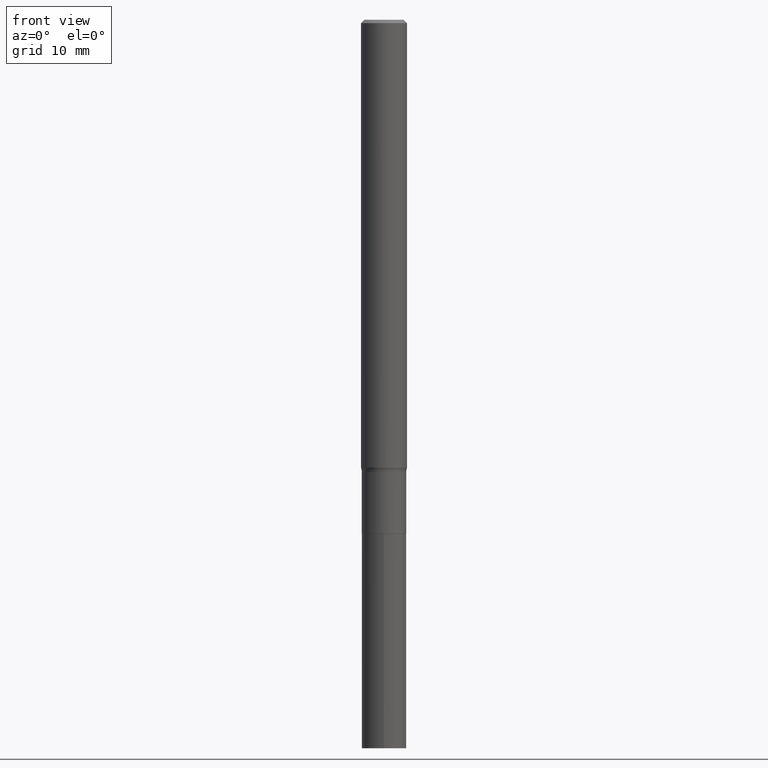
[diagram: clean part render]
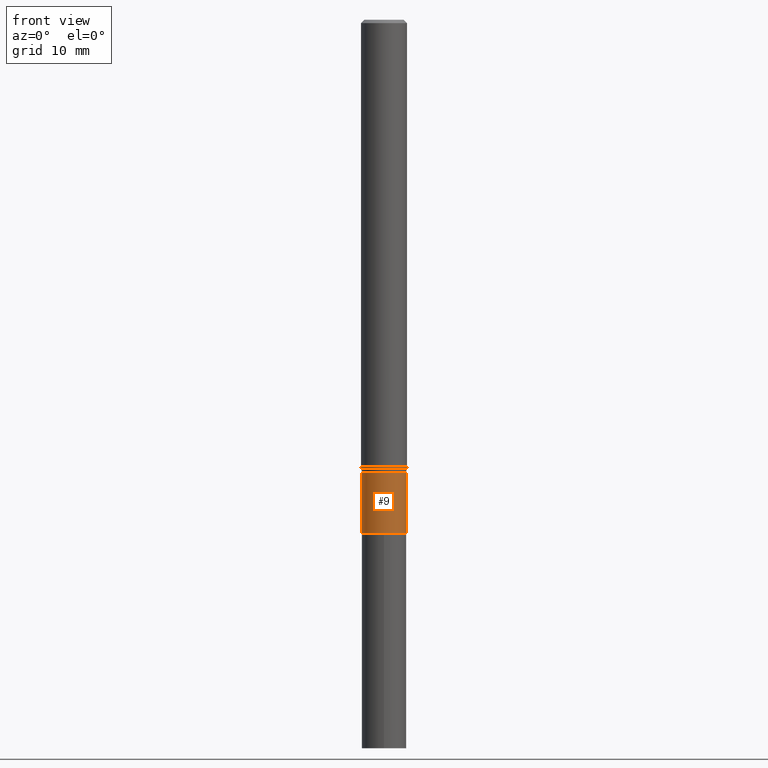
[diagram: same view with one face highlighted and labeled with its STEP entity id]
A machine part, front view. The second image highlights one B-rep face of the part: STEP entity #9.
In plain terms, the highlighted cylindrical surface (edge-blend (fillet) strip) has radius 2.8994 mm, axis along (-0, 0, 1).
Its self-contained STEP definition (entity closure, byte-faithful):
#1 = EDGE_CURVE ( 'NONE', #262, #442, #53, .T. ) ;
#9 = ADVANCED_FACE ( 'NONE', ( #234 ), #460, .T. ) ;
#14 = DIRECTION ( 'NONE',  ( -2.445468806185136597E-29, 3.491481338843145583E-15, 1.000000000000000000 ) ) ;
#16 = DIRECTION ( 'NONE',  ( -2.445468806185136877E-29, 3.491481338843145188E-15, 1.000000000000000000 ) ) ;
#20 = CIRCLE ( 'NONE', #429, 0.1141499999999999598 ) ;
#28 = CARTESIAN_POINT ( 'NONE',  ( 5.683269505574258330E-29, -8.114202631471472021E-15, -2.324000000000000288 ) ) ;
#46 = VECTOR ( 'NONE', #145, 39.37007874015748143 ) ;
#50 = CARTESIAN_POINT ( 'NONE',  ( 0.000000000000000000, 0.000000000000000000, 0.000000000000000000 ) ) ;
#53 = LINE ( 'NONE', #453, #307 ) ;
#76 = ORIENTED_EDGE ( 'NONE', *, *, #310, .F. ) ;
#82 = LINE ( 'NONE', #302, #46 ) ;
#123 = ORIENTED_EDGE ( 'NONE', *, *, #1, .T. ) ;
#131 = CARTESIAN_POINT ( 'NONE',  ( -0.1141500000000000015, -7.850756946598864420E-15, -2.637700000000000156 ) ) ;
#145 = DIRECTION ( 'NONE',  ( -2.445468806185136877E-29, 3.491481338843145188E-15, 1.000000000000000000 ) ) ;
#182 = DIRECTION ( 'NONE',  ( 1.000000000000000000, -6.982962677686264344E-15, 0.000000000000000000 ) ) ;
#196 = DIRECTION ( 'NONE',  ( 1.000000000000000000, -6.982962677686266711E-15, 4.876176775795935793E-29 ) ) ;
#208 = CARTESIAN_POINT ( 'NONE',  ( -0.1141499999999999598, -7.850756946598864420E-15, -2.324000000000000288 ) ) ;
#209 = ORIENTED_EDGE ( 'NONE', *, *, #431, .T. ) ;
#224 = DIRECTION ( 'NONE',  ( -2.445468806185136597E-29, 3.491481338843145583E-15, 1.000000000000000000 ) ) ;
#227 = ORIENTED_EDGE ( 'NONE', *, *, #445, .F. ) ;
#232 = CARTESIAN_POINT ( 'NONE',  ( 0.1141500000000000015, -1.000658551712445131E-14, -2.637700000000000156 ) ) ;
#234 = FACE_OUTER_BOUND ( 'NONE', #311, .T. ) ;
#262 = VERTEX_POINT ( 'NONE', #232 ) ;
#267 = CARTESIAN_POINT ( 'NONE',  ( 0.1141499999999999598, -8.911307821129359738E-15, -2.324000000000000288 ) ) ;
#302 = CARTESIAN_POINT ( 'NONE',  ( -0.1141499999999999737, 8.110845328701541754E-16, -5.614964405525973971E-30 ) ) ;
#307 = VECTOR ( 'NONE', #16, 39.37007874015748143 ) ;
#310 = EDGE_CURVE ( 'NONE', #331, #442, #20, .T. ) ;
#311 = EDGE_LOOP ( 'NONE', ( #227, #209, #123, #76 ) ) ;
#316 = DIRECTION ( 'NONE',  ( -2.445468806185136597E-29, 3.491481338843145583E-15, 1.000000000000000000 ) ) ;
#320 = DIRECTION ( 'NONE',  ( 1.000000000000000000, -6.982962677686267499E-15, 0.000000000000000000 ) ) ;
#329 = CIRCLE ( 'NONE', #402, 0.1141500000000000015 ) ;
#331 = VERTEX_POINT ( 'NONE', #208 ) ;
#387 = AXIS2_PLACEMENT_3D ( 'NONE', #50, #14, #196 ) ;
#402 = AXIS2_PLACEMENT_3D ( 'NONE', #454, #224, #182 ) ;
#429 = AXIS2_PLACEMENT_3D ( 'NONE', #28, #316, #320 ) ;
#431 = EDGE_CURVE ( 'NONE', #461, #262, #329, .T. ) ;
#442 = VERTEX_POINT ( 'NONE', #267 ) ;
#445 = EDGE_CURVE ( 'NONE', #461, #331, #82, .T. ) ;
#453 = CARTESIAN_POINT ( 'NONE',  ( 0.1141499999999999737, -7.971051896578871257E-16, 5.566155789571059486E-30 ) ) ;
#454 = CARTESIAN_POINT ( 'NONE',  ( 6.450413070074535567E-29, -9.209480327466565169E-15, -2.637700000000000156 ) ) ;
#460 = CYLINDRICAL_SURFACE ( 'NONE', #387, 0.1141499999999999737 ) ;
#461 = VERTEX_POINT ( 'NONE', #131 ) ;